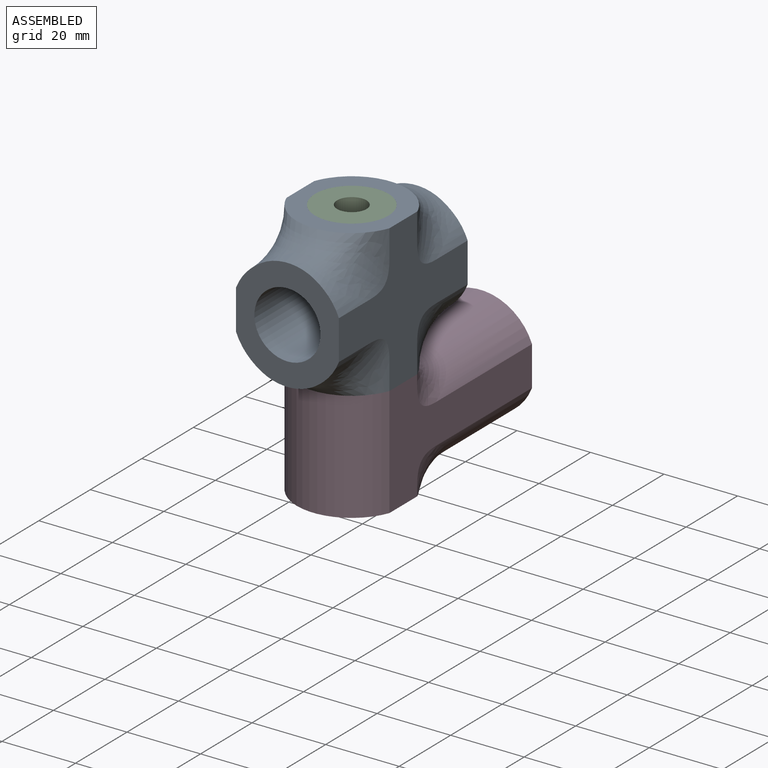
[diagram: assembled view]
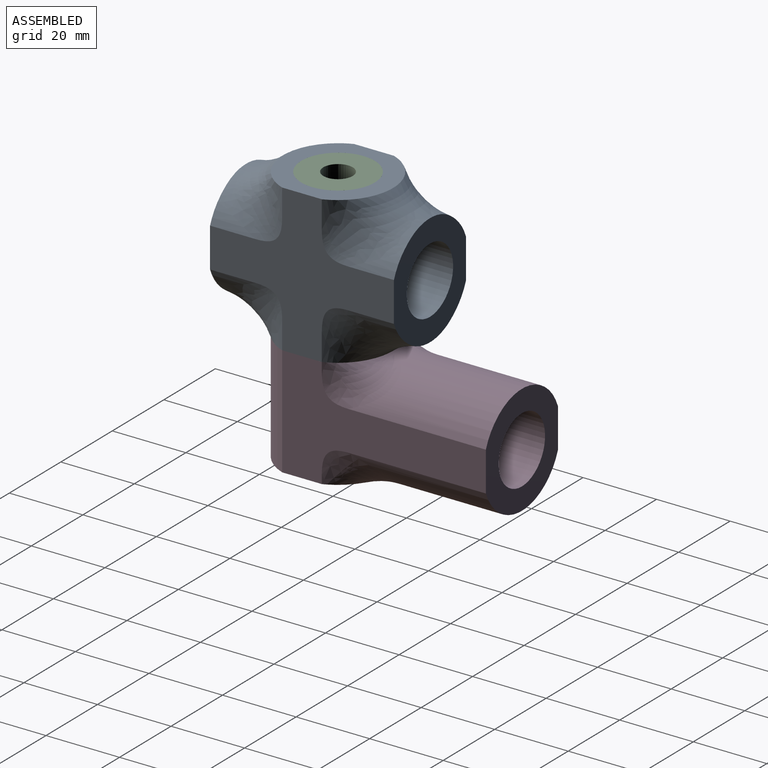
[diagram: assembled view, second angle]
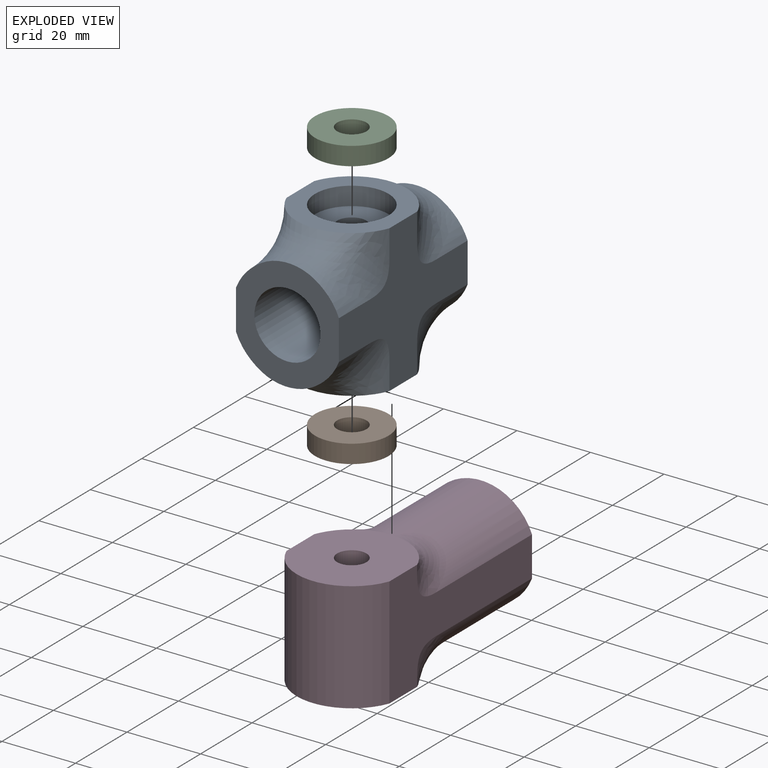
[diagram: exploded view]
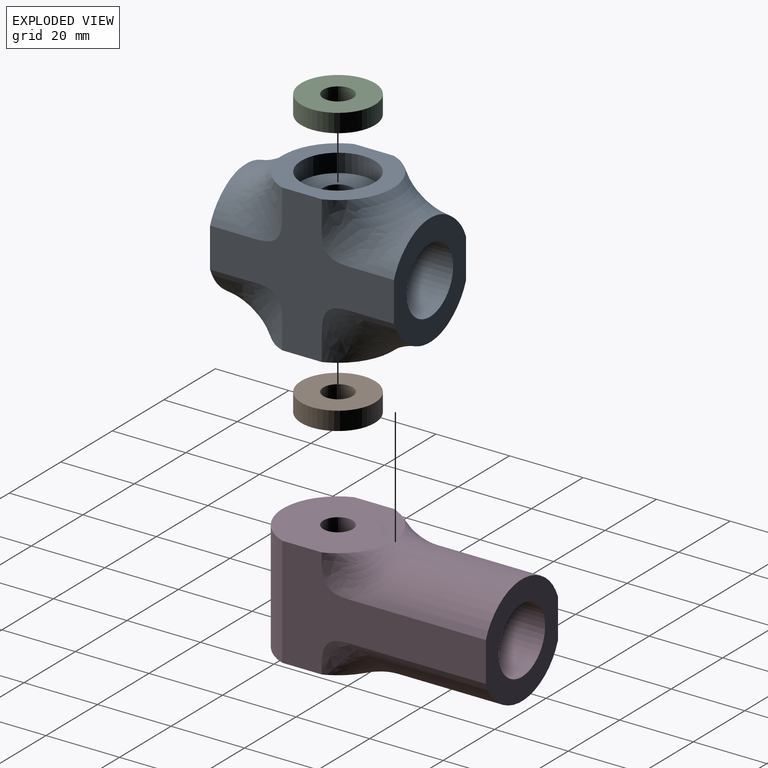
[diagram: exploded view, second angle]
ASSEMBLY  parts=4 mates=3
PART A: 41 faces, bbox 33.4x61.9x45.4 mm
  f0: cylinder r=15mm len=12.43mm, axis (0,1,0), area 40.8mm2, adj f7,f19,f34,f40
  f1: cylinder r=15mm len=12.43mm, axis (0,1,0), area 40.8mm2, adj f7,f13,f27,f40
  f2: cylinder r=15mm len=12.43mm, axis (0,1,0), area 40.8mm2, adj f8,f32,f33,f39
  f3: cylinder r=15mm len=7.43mm, axis (0,0,-1), area 13.4mm2, adj f11,f28,f39
  f4: cylinder r=15mm len=12.43mm, axis (0,1,0), area 40.8mm2, adj f8,f18,f33,f40
  f5: cylinder r=15mm len=12.43mm, axis (0,1,0), area 40.8mm2, adj f8,f12,f26,f40
  f6: cylinder r=15mm len=12.43mm, axis (0,1,0), area 40.8mm2, adj f7,f34,f35,f39
  f7: plane 30.53x28mm, normal (0,-1,0), area 445mm2, adj f0,f1,f6,f24,f27,f34,f38,f39
  f8: plane 30.53x28mm, normal (0,1,0), area 445mm2, adj f2,f4,f5,f22,f26,f33,f38,f39
  f9: cylinder r=15mm len=7.43mm, axis (0,0,-1), area 13.4mm2, adj f11,f13,f40
  f10: cylinder r=15mm len=7.43mm, axis (0,0,-1), area 13.4mm2, adj f11,f12,f40
  f11: plane 32.36x30.36mm, normal (0,0,1), area 378.2mm2, adj f3,f9,f10,f23,f26,f27,f29,f39
  f12: bspline ~14.62x14.62mm, area 100.4mm2, adj f5,f10,f26,f40
  f13: bspline ~14.62x14.62mm, area 100.4mm2, adj f1,f9,f27,f40
  f14: cylinder r=15mm len=7.43mm, axis (0,0,1), area 13.4mm2, adj f17,f32,f39
  f15: cylinder r=15mm len=7.43mm, axis (0,0,1), area 13.4mm2, adj f17,f18,f40
  f16: cylinder r=15mm len=7.43mm, axis (0,0,1), area 13.4mm2, adj f17,f19,f40
  f17: plane 32.36x30.36mm, normal (0,0,-1), area 378.2mm2, adj f14,f15,f16,f31,f33,f34,f36,f39
  f18: bspline ~14.62x14.62mm, area 100.4mm2, adj f4,f15,f33,f40
  f19: bspline ~14.62x14.62mm, area 100.4mm2, adj f0,f16,f34,f40
  f20: cylinder r=4mm len=8mm, axis (0,0,1), area 174.4mm2, adj f37,f38
  f21: cylinder r=4mm len=8mm, axis (0,0,1), area 156.7mm2, adj f30,f38
  f22: cylinder r=15mm len=12.43mm, axis (0,1,0), area 40.8mm2, adj f8,f25,f26,f39
  f23: cylinder r=15mm len=7.43mm, axis (0,0,-1), area 13.4mm2, adj f11,f25,f39
  f24: cylinder r=15mm len=12.43mm, axis (0,1,0), area 40.8mm2, adj f7,f27,f28,f39
  f25: bspline ~14.62x14.62mm, area 100.4mm2, adj f22,f23,f26,f39
  f26: bspline ~25.57x20.7mm, area 381.7mm2, adj f5,f8,f11,f12,f22,f25
  f27: bspline ~25.57x20.7mm, area 381.7mm2, adj f1,f7,f11,f13,f24,f28
  f28: bspline ~14.62x14.62mm, area 100.4mm2, adj f3,f24,f27,f39
  f29: cylinder r=10mm len=20mm, axis (0,0,1), area 314.2mm2, adj f11,f30
  f30: plane 20x20mm, normal (0,0,1), area 263.9mm2, adj f21,f29
  f31: cylinder r=15mm len=7.43mm, axis (0,0,1), area 13.4mm2, adj f17,f35,f39
  f32: bspline ~14.62x14.62mm, area 100.4mm2, adj f2,f14,f33,f39
  f33: bspline ~25.71x20.7mm, area 381.7mm2, adj f2,f4,f8,f17,f18,f32
  f34: bspline ~25.71x20.7mm, area 381.7mm2, adj f0,f6,f7,f17,f19,f35
  f35: bspline ~14.62x14.62mm, area 100.4mm2, adj f6,f31,f34,f39
  f36: cylinder r=10mm len=20mm, axis (0,0,-1), area 314.2mm2, adj f17,f37
  f37: plane 20x20mm, normal (0,0,-1), area 263.9mm2, adj f20,f36
  f38: cylinder r=9mm len=50mm, axis (0,1,0), area 2733.5mm2, adj f7,f8,f20,f21
  f39: plane 55.43x45.43mm, normal (-1,0,0), area 881.9mm2, adj f2,f3,f6,f7,f8,f11,f14,f17
  f40: plane 55.43x45.43mm, normal (1,0,0), area 881.9mm2, adj f0,f1,f4,f5,f7,f8,f9,f10
PART B: 4 faces, bbox 20x20x5 mm
  f0: cylinder r=4mm len=8mm, axis (0,0,1), area 125.7mm2, adj f2,f3
  f1: cylinder r=10mm len=20mm, axis (0,0,1), area 314.2mm2, adj f2,f3
  f2: plane 20x20mm, normal (0,0,-1), area 263.9mm2, adj f0,f1
  f3: plane 20x20mm, normal (0,0,1), area 263.9mm2, adj f0,f1
PART C: same geometry as B
PART D: 23 faces, bbox 34.3x70.5x35.5 mm
  f0: cylinder r=15mm len=2.43mm, axis (0,0,1), area 1.4mm2, adj f6,f15,f22
  f1: cylinder r=15mm len=2.43mm, axis (0,0,1), area 1.4mm2, adj f5,f12,f22
  f2: cylinder r=15mm len=2.43mm, axis (0,0,1), area 1.4mm2, adj f6,f11,f21
  f3: cylinder r=15mm len=2.43mm, axis (0,0,1), area 1.4mm2, adj f5,f10,f21
  f4: cylinder r=15mm len=30mm, axis (0,0,1), area 1083.2mm2, adj f5,f6,f21,f22
  f5: plane 35.47x33.47mm, normal (0,0,-1), area 642.1mm2, adj f1,f3,f4,f13,f16,f20,f21,f22
  f6: plane 35.47x33.47mm, normal (0,0,1), area 642.1mm2, adj f0,f2,f4,f14,f17,f20,f21,f22
  f7: cylinder r=15mm len=37.43mm, axis (0,-1,0), area 1109.1mm2, adj f9,f11,f14,f15,f17,f21,f22
  f8: cylinder r=15mm len=37.43mm, axis (0,-1,0), area 1109.1mm2, adj f9,f10,f12,f13,f16,f21,f22
  f9: plane 30x28mm, normal (0,1,0), area 437.9mm2, adj f7,f8,f18,f21,f22
  f10: bspline ~10.77x10.77mm, area 45.7mm2, adj f3,f8,f16,f21
  f11: bspline ~10.77x10.77mm, area 45.7mm2, adj f2,f7,f17,f21
  f12: bspline ~10.77x10.77mm, area 45.7mm2, adj f1,f8,f13,f22
  f13: bspline ~16.77x14.15mm, area 83.5mm2, adj f5,f8,f12
  f14: bspline ~16.77x14.15mm, area 83.5mm2, adj f6,f7,f15
  f15: bspline ~10.77x10.77mm, area 45.7mm2, adj f0,f7,f14,f22
  f16: bspline ~16.77x14.15mm, area 83.5mm2, adj f5,f8,f10
  f17: bspline ~16.77x14.15mm, area 83.5mm2, adj f6,f7,f11
  f18: cylinder r=9mm len=25mm, axis (0,1,0), area 1413.7mm2, adj f9,f19
  f19: plane 18x18mm, normal (0,1,0), area 254.5mm2, adj f18
  f20: cylinder r=4mm len=30mm, axis (0,0,-1), area 754mm2, adj f5,f6
  f21: plane 55.39x30mm, normal (1,0,0), area 817.9mm2, adj f2,f3,f4,f5,f6,f7,f8,f9
  f22: plane 55.39x30mm, normal (-1,0,0), area 817.9mm2, adj f0,f1,f4,f5,f6,f7,f8,f9
PLACE A t=(27.21,28.46,52.88)mm
PLACE B t=(27.21,28.46,52.88)mm
PLACE C t=(27.21,28.46,87.88)mm
PLACE D t=(27.21,28.46,52.88)mm
MATE revolute D.f20 <-> B.f0  axis (0,0,1) through (27.21,28.46,32.88)mm
MATE revolute C.f1 <-> A.f29  axis (0,0,-1) through (27.21,28.46,67.88)mm
MATE revolute A.f29 <-> B.f1  axis (0,0,-1) through (27.21,28.46,37.88)mm
